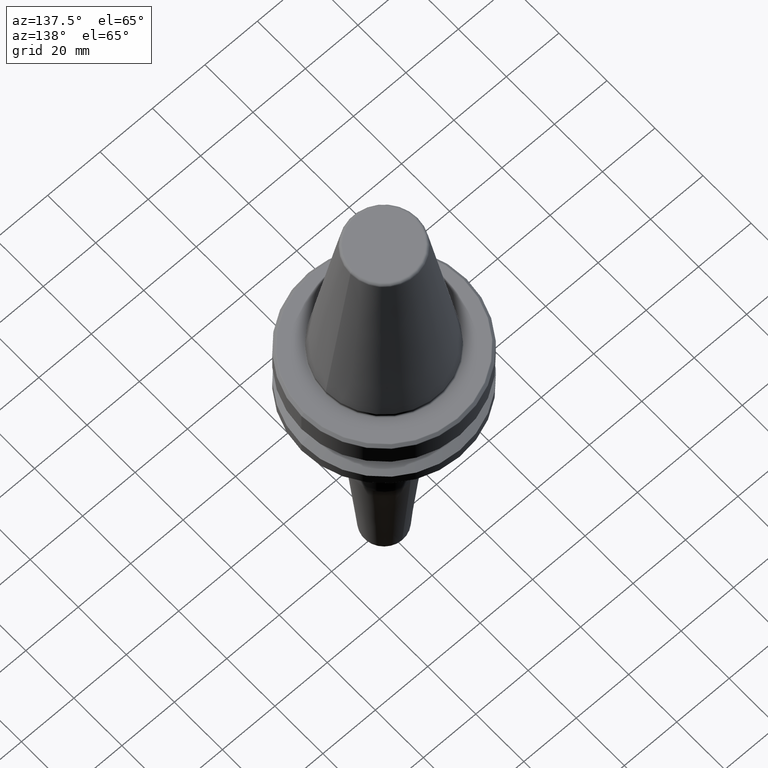
[diagram: clean part render]
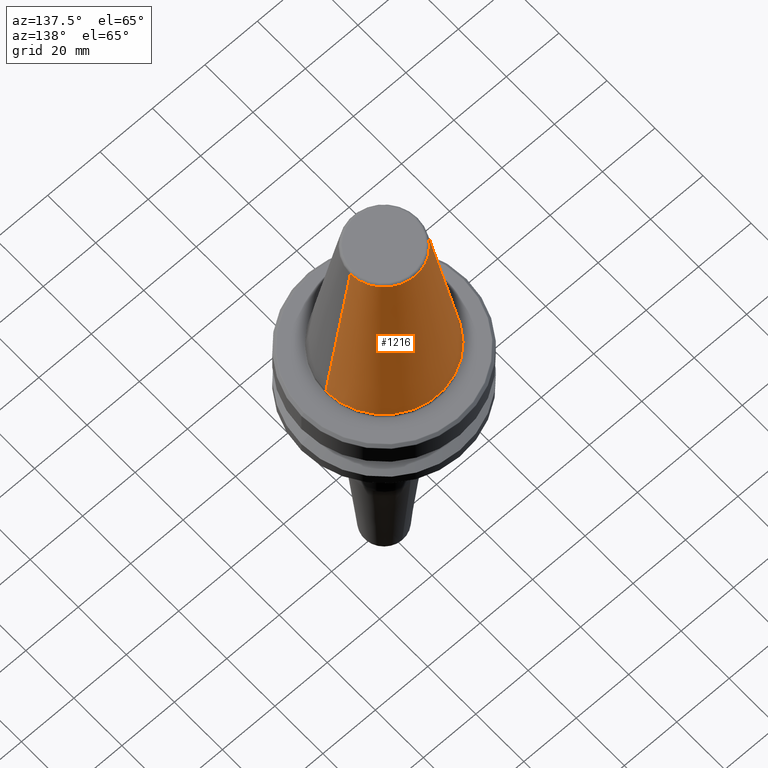
[diagram: same view with one face highlighted and labeled with its STEP entity id]
A machine part, auxiliary view. The second image highlights one B-rep face of the part: STEP entity #1216.
In plain terms, the highlighted conical surface has half-angle 8.297 deg.
Its self-contained STEP definition (entity closure, byte-faithful):
#1 = DIRECTION ( 'NONE',  ( 0.0000000000000000000, 0.0000000000000000000, -1.000000000000000000 ) ) ;
#2 = EDGE_CURVE ( 'NONE', #48, #138, #24, .T. ) ;
#24 = CIRCLE ( 'NONE', #974, 22.22500000000000500 ) ;
#31 = DIRECTION ( 'NONE',  ( 0.1443082272673071000, 1.767266086135364600E-017, -0.9895327864921743500 ) ) ;
#46 = CONICAL_SURFACE ( 'NONE', #996, 12.81219950706224800, 0.1448138465474191100 ) ;
#48 = VERTEX_POINT ( 'NONE', #1094 ) ;
#66 = LINE ( 'NONE', #676, #269 ) ;
#84 = DIRECTION ( 'NONE',  ( -0.1443082272673071000, 0.0000000000000000000, -0.9895327864921743500 ) ) ;
#105 = DIRECTION ( 'NONE',  ( 1.000000000000000000, 0.0000000000000000000, 0.0000000000000000000 ) ) ;
#108 = CARTESIAN_POINT ( 'NONE',  ( -12.81219950706224800, 0.0000000000000000000, 64.54430822726730800 ) ) ;
#112 = LINE ( 'NONE', #1198, #344 ) ;
#138 = VERTEX_POINT ( 'NONE', #353 ) ;
#152 = EDGE_CURVE ( 'NONE', #1004, #1099, #406, .T. ) ;
#173 = EDGE_CURVE ( 'NONE', #1004, #48, #112, .T. ) ;
#269 = VECTOR ( 'NONE', #84, 1000.000000000000000 ) ;
#344 = VECTOR ( 'NONE', #31, 1000.000000000000000 ) ;
#353 = CARTESIAN_POINT ( 'NONE',  ( -22.22500000000000500, 2.721777511104993200E-015, 0.0000000000000000000 ) ) ;
#395 = EDGE_LOOP ( 'NONE', ( #865, #552, #937, #428 ) ) ;
#406 = CIRCLE ( 'NONE', #1112, 12.81219950706224800 ) ;
#428 = ORIENTED_EDGE ( 'NONE', *, *, #989, .F. ) ;
#508 = CARTESIAN_POINT ( 'NONE',  ( 12.81219950706224800, 2.145409711370550300E-015, 64.54430822726730800 ) ) ;
#552 = ORIENTED_EDGE ( 'NONE', *, *, #173, .T. ) ;
#569 = DIRECTION ( 'NONE',  ( -0.0000000000000000000, -0.0000000000000000000, 1.000000000000000000 ) ) ;
#617 = DIRECTION ( 'NONE',  ( 1.000000000000000000, 0.0000000000000000000, 0.0000000000000000000 ) ) ;
#645 = DIRECTION ( 'NONE',  ( -0.0000000000000000000, -0.0000000000000000000, 1.000000000000000000 ) ) ;
#676 = CARTESIAN_POINT ( 'NONE',  ( -12.81219950706224800, 0.0000000000000000000, 64.54430822726730800 ) ) ;
#822 = DIRECTION ( 'NONE',  ( -1.000000000000000000, 0.0000000000000000000, 0.0000000000000000000 ) ) ;
#865 = ORIENTED_EDGE ( 'NONE', *, *, #152, .F. ) ;
#869 = FACE_OUTER_BOUND ( 'NONE', #395, .T. ) ;
#922 = CARTESIAN_POINT ( 'NONE',  ( 0.0000000000000000000, 0.0000000000000000000, 0.0000000000000000000 ) ) ;
#925 = CARTESIAN_POINT ( 'NONE',  ( 0.0000000000000000000, 0.0000000000000000000, 64.54430822726730800 ) ) ;
#937 = ORIENTED_EDGE ( 'NONE', *, *, #2, .T. ) ;
#974 = AXIS2_PLACEMENT_3D ( 'NONE', #922, #645, #617 ) ;
#989 = EDGE_CURVE ( 'NONE', #1099, #138, #66, .T. ) ;
#996 = AXIS2_PLACEMENT_3D ( 'NONE', #925, #1, #822 ) ;
#1001 = CARTESIAN_POINT ( 'NONE',  ( 0.0000000000000000000, 0.0000000000000000000, 64.54430822726730800 ) ) ;
#1004 = VERTEX_POINT ( 'NONE', #508 ) ;
#1094 = CARTESIAN_POINT ( 'NONE',  ( 22.22500000000000500, 0.0000000000000000000, 0.0000000000000000000 ) ) ;
#1099 = VERTEX_POINT ( 'NONE', #108 ) ;
#1112 = AXIS2_PLACEMENT_3D ( 'NONE', #1001, #569, #105 ) ;
#1198 = CARTESIAN_POINT ( 'NONE',  ( 12.81219950706224800, 1.569041911636107800E-015, 64.54430822726730800 ) ) ;
#1216 = ADVANCED_FACE ( 'NONE', ( #869 ), #46, .T. ) ;